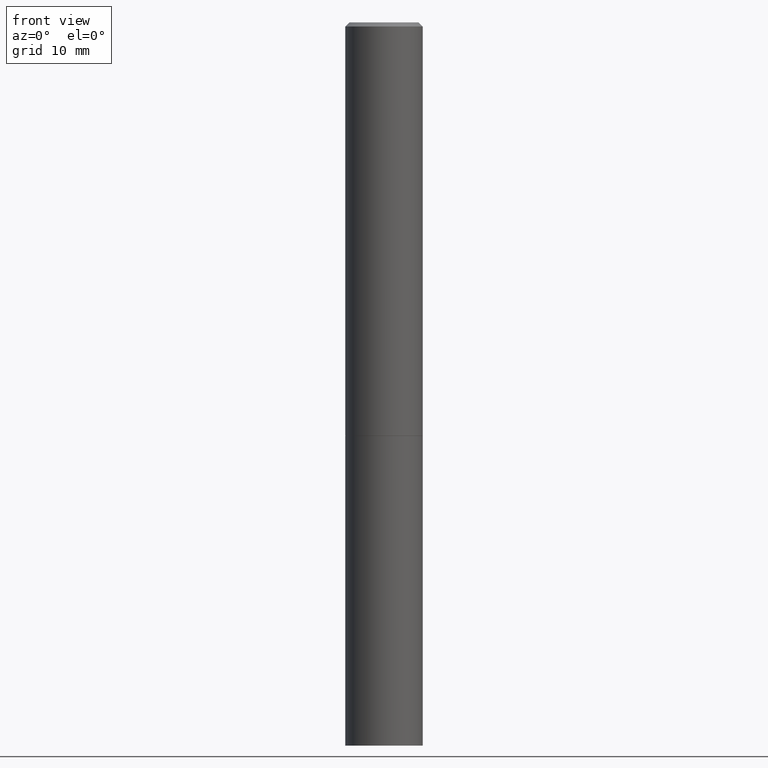
[diagram: clean part render]
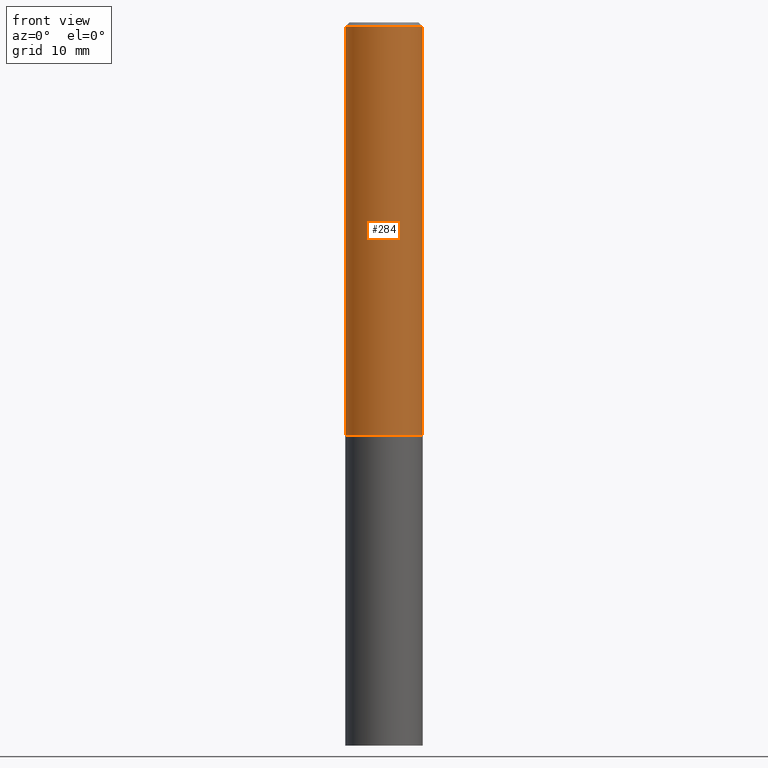
[diagram: same view with one face highlighted and labeled with its STEP entity id]
A machine part, front view. The second image highlights one B-rep face of the part: STEP entity #284.
In plain terms, the highlighted cylindrical surface (partial cylindrical patch) has radius 4.7625 mm, axis along (-0, 0, 1).
Its self-contained STEP definition (entity closure, byte-faithful):
#24 = CARTESIAN_POINT ( 'NONE',  ( 0.1874999999999998890, -1.309305502066174022E-15, 9.142831454617374006E-30 ) ) ;
#35 = VERTEX_POINT ( 'NONE', #140 ) ;
#45 = ORIENTED_EDGE ( 'NONE', *, *, #348, .T. ) ;
#48 = CIRCLE ( 'NONE', #268, 0.1874999999999997502 ) ;
#50 = LINE ( 'NONE', #310, #254 ) ;
#75 = DIRECTION ( 'NONE',  ( 1.000000000000000000, -6.982962677686265133E-15, 0.000000000000000000 ) ) ;
#86 = ORIENTED_EDGE ( 'NONE', *, *, #289, .F. ) ;
#88 = DIRECTION ( 'NONE',  ( -2.445468806185136597E-29, 3.491481338843145583E-15, 1.000000000000000000 ) ) ;
#93 = CARTESIAN_POINT ( 'NONE',  ( -0.1874999999999997502, 1.239475875289309935E-15, -0.02000000000000004205 ) ) ;
#107 = DIRECTION ( 'NONE',  ( -2.445468806185136597E-29, 3.491481338843145583E-15, 1.000000000000000000 ) ) ;
#119 = LINE ( 'NONE', #24, #127 ) ;
#125 = CARTESIAN_POINT ( 'NONE',  ( 0.1875000000000000278, -8.288776698413622377E-15, -1.998999999999999666 ) ) ;
#127 = VECTOR ( 'NONE', #252, 39.37007874015748143 ) ;
#130 = VERTEX_POINT ( 'NONE', #125 ) ;
#132 = CIRCLE ( 'NONE', #234, 0.1875000000000000278 ) ;
#139 = CYLINDRICAL_SURFACE ( 'NONE', #258, 0.1874999999999998890 ) ;
#140 = CARTESIAN_POINT ( 'NONE',  ( 0.1874999999999997502, -1.356173001359023494E-15, -0.02000000000000004205 ) ) ;
#161 = FACE_OUTER_BOUND ( 'NONE', #214, .T. ) ;
#162 = ORIENTED_EDGE ( 'NONE', *, *, #180, .T. ) ;
#180 = EDGE_CURVE ( 'NONE', #298, #130, #132, .T. ) ;
#192 = CARTESIAN_POINT ( 'NONE',  ( 4.890937612370283668E-31, -6.982962677686305168E-17, -0.02000000000000004205 ) ) ;
#207 = CARTESIAN_POINT ( 'NONE',  ( 4.888492143564087030E-29, -6.979471196347446580E-15, -1.998999999999999666 ) ) ;
#214 = EDGE_LOOP ( 'NONE', ( #245, #162, #45, #86 ) ) ;
#222 = DIRECTION ( 'NONE',  ( 1.000000000000000000, -6.982962677686265922E-15, 4.876176775795935793E-29 ) ) ;
#234 = AXIS2_PLACEMENT_3D ( 'NONE', #207, #88, #237 ) ;
#237 = DIRECTION ( 'NONE',  ( 1.000000000000000000, -6.982962677686266711E-15, 0.000000000000000000 ) ) ;
#239 = VERTEX_POINT ( 'NONE', #93 ) ;
#245 = ORIENTED_EDGE ( 'NONE', *, *, #364, .F. ) ;
#247 = CARTESIAN_POINT ( 'NONE',  ( 0.000000000000000000, 0.000000000000000000, 0.000000000000000000 ) ) ;
#252 = DIRECTION ( 'NONE',  ( -2.445468806185136877E-29, 3.491481338843145188E-15, 1.000000000000000000 ) ) ;
#254 = VECTOR ( 'NONE', #308, 39.37007874015748143 ) ;
#258 = AXIS2_PLACEMENT_3D ( 'NONE', #247, #107, #222 ) ;
#268 = AXIS2_PLACEMENT_3D ( 'NONE', #192, #299, #75 ) ;
#284 = ADVANCED_FACE ( 'NONE', ( #161 ), #139, .T. ) ;
#289 = EDGE_CURVE ( 'NONE', #239, #35, #48, .T. ) ;
#298 = VERTEX_POINT ( 'NONE', #332 ) ;
#299 = DIRECTION ( 'NONE',  ( -2.445468806185136597E-29, 3.491481338843145583E-15, 1.000000000000000000 ) ) ;
#308 = DIRECTION ( 'NONE',  ( -2.445468806185136877E-29, 3.491481338843145188E-15, 1.000000000000000000 ) ) ;
#310 = CARTESIAN_POINT ( 'NONE',  ( -0.1874999999999998890, 1.332267629550187060E-15, -9.223003294227942385E-30 ) ) ;
#332 = CARTESIAN_POINT ( 'NONE',  ( -0.1875000000000000278, -2.192382782011964724E-15, -1.998999999999999666 ) ) ;
#348 = EDGE_CURVE ( 'NONE', #130, #35, #119, .T. ) ;
#364 = EDGE_CURVE ( 'NONE', #298, #239, #50, .T. ) ;